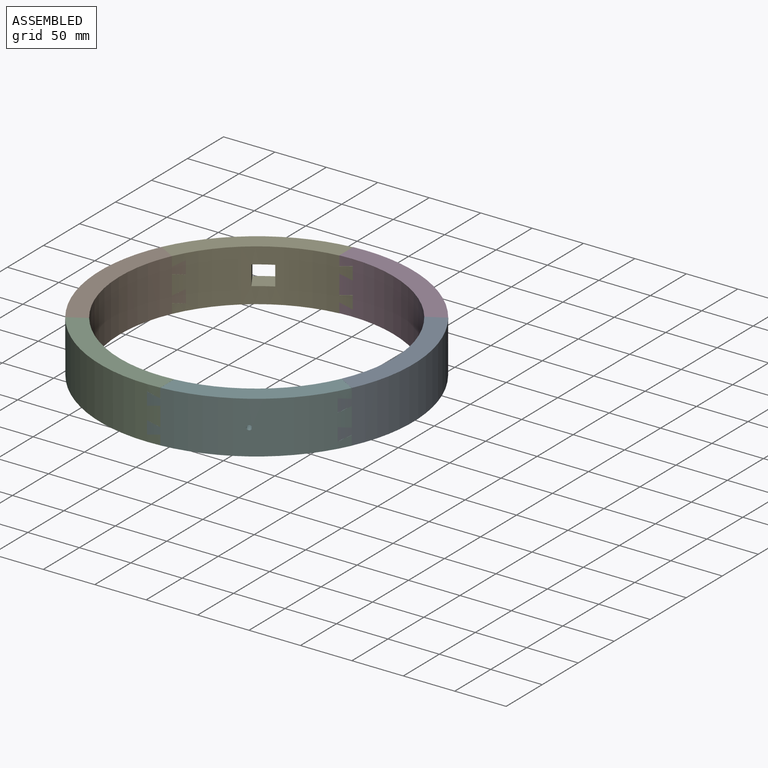
[diagram: assembled view]
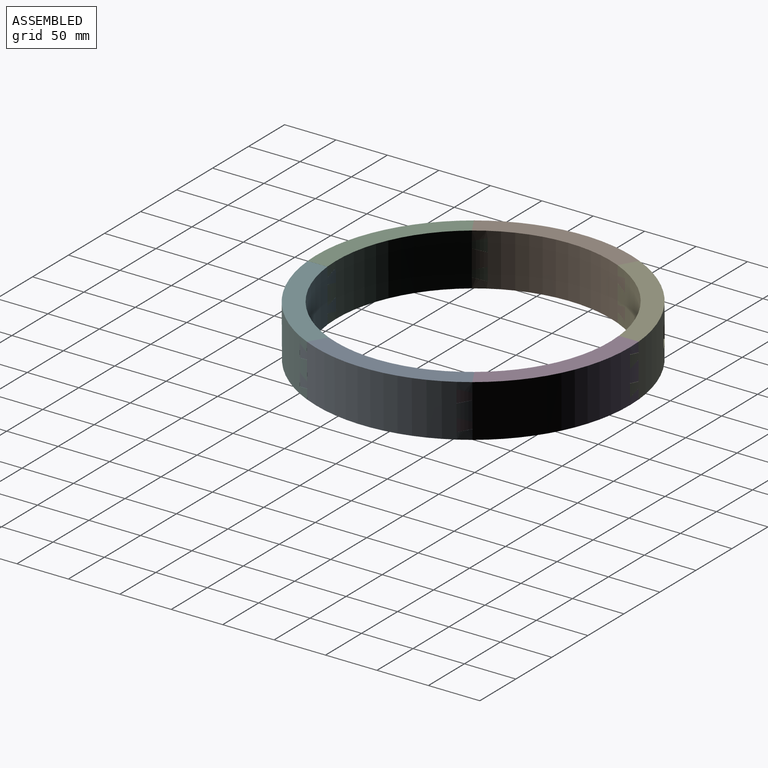
[diagram: assembled view, second angle]
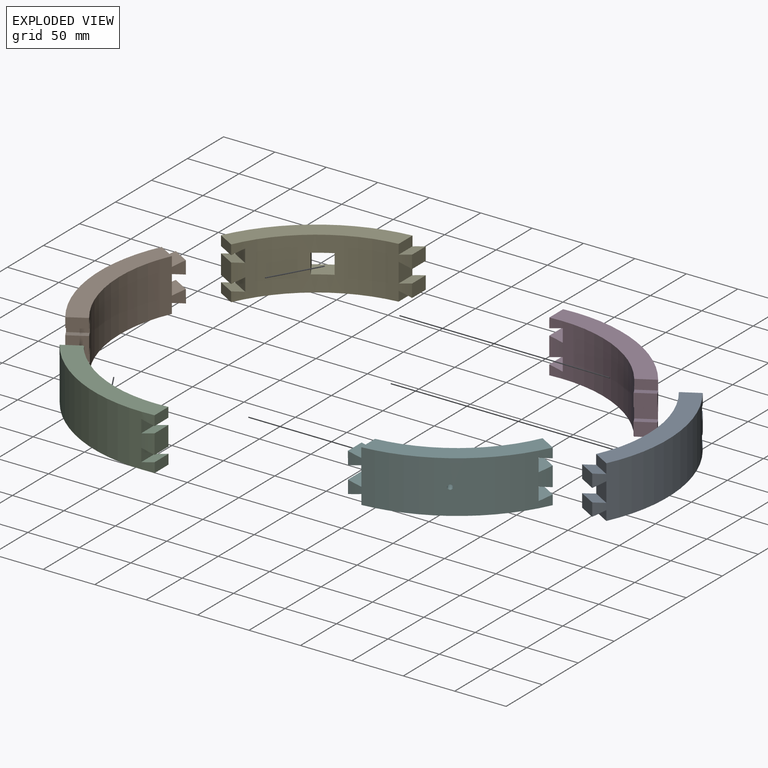
[diagram: exploded view]
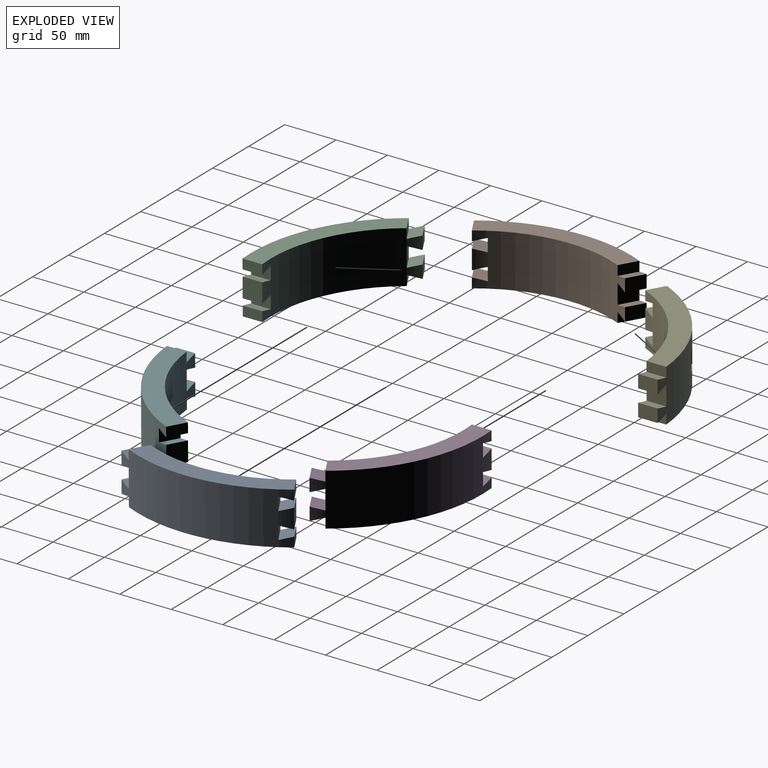
[diagram: exploded view, second angle]
ASSEMBLY  parts=6 mates=4
PART A: 23 faces, bbox 137.9x97x50.8 mm
  f0: cylinder r=133.35mm len=121.31mm, axis (0,0,-1), area 7095.6mm2, adj f1,f2,f4,f5,f6,f7,f8,f9
  f1: plane 19.05x12.69mm, normal (1,0,0), area 241.7mm2, adj f0,f3,f16,f20
  f2: plane 19.05x12.66mm, normal (1,0,0), area 241.1mm2, adj f0,f3,f18,f22
  f3: cylinder r=152.4mm len=137.87mm, axis (0,0,-1), area 8109mm2, adj f1,f2,f4,f5,f6,f7,f8,f9
  f4: plane 125.17x96.49mm, normal (0,0,-1), area 2850mm2, adj f0,f3,f6,f17
  f5: plane 18.98x16.56mm, normal (-0.5,-0.87,0), area 363.1mm2, adj f0,f3,f9,f13
  f6: plane 16.56x9.56mm, normal (-0.5,-0.87,0), area 182mm2, adj f0,f3,f4,f10
  f7: plane 16.56x9.56mm, normal (-0.5,-0.87,0), area 181.7mm2, adj f0,f3,f8,f14
  f8: plane 125.28x96.5mm, normal (0,0,1), area 2852.2mm2, adj f0,f3,f7,f19
  f9: plane 22.37x20.79mm, normal (0.12,0.21,-0.97), area 248.8mm2, adj f0,f3,f5,f11
  f10: plane 22.38x20.81mm, normal (0.12,0.21,0.97), area 249.1mm2, adj f0,f3,f6,f11
  f11: plane 16.51x12.7mm, normal (-0.5,-0.87,0), area 241.9mm2, adj f0,f3,f9,f10
  f12: plane 16.51x12.7mm, normal (-0.5,-0.87,0), area 241.9mm2, adj f0,f3,f13,f14
  f13: plane 22.36x20.76mm, normal (0.12,0.21,0.97), area 248.1mm2, adj f0,f3,f5,f12
  f14: plane 22.34x20.74mm, normal (0.12,0.21,-0.97), area 247.8mm2, adj f0,f3,f7,f12
  f15: plane 19.13x9.53mm, normal (1,0,0), area 182.2mm2, adj f0,f3,f16,f17
  f16: plane 19.66x12.68mm, normal (-0.24,0,-0.97), area 249.4mm2, adj f0,f1,f3,f15
  f17: plane 19.13x0.05mm, normal (1,0,0), area 1mm2, adj f0,f3,f4,f15
  f18: plane 19.65x12.61mm, normal (-0.24,0,0.97), area 247.7mm2, adj f0,f2,f3,f19
  f19: plane 19.13x9.47mm, normal (1,0,0), area 181.1mm2, adj f0,f3,f8,f18
  f20: plane 19.66x12.67mm, normal (-0.24,0,0.97), area 248.8mm2, adj f0,f1,f3,f21
  f21: plane 19.13x19.02mm, normal (1,0,0), area 363.7mm2, adj f0,f3,f20,f22
  f22: plane 19.65x12.63mm, normal (-0.24,0,-0.97), area 248.3mm2, adj f0,f2,f3,f21
PART B: same geometry as A
PART C: same geometry as A
PART D: same geometry as A
PART E: 27 faces, bbox 137.9x97x50.8 mm
  f0: cylinder r=152.4mm len=137.87mm, axis (0,0,-1), area 7745.8mm2, adj f2,f3,f4,f5,f6,f7,f8,f9
  f1: cylinder r=133.35mm len=121.31mm, axis (0,0,-1), area 6732.4mm2, adj f2,f3,f4,f5,f6,f7,f8,f9
  f2: plane 19.05x12.69mm, normal (1,0,0), area 241.7mm2, adj f0,f1,f16,f20
  f3: plane 19.05x12.66mm, normal (1,0,0), area 241.1mm2, adj f0,f1,f18,f22
  f4: plane 125.17x96.49mm, normal (0,0,-1), area 2850mm2, adj f0,f1,f6,f17
  f5: plane 18.98x16.56mm, normal (-0.5,-0.87,0), area 363.1mm2, adj f0,f1,f9,f13
  f6: plane 16.56x9.56mm, normal (-0.5,-0.87,0), area 182mm2, adj f0,f1,f4,f10
  f7: plane 16.56x9.56mm, normal (-0.5,-0.87,0), area 181.7mm2, adj f0,f1,f8,f14
  f8: plane 125.28x96.5mm, normal (0,0,1), area 2852.2mm2, adj f0,f1,f7,f19
  f9: plane 22.37x20.79mm, normal (0.12,0.21,-0.97), area 248.8mm2, adj f0,f1,f5,f11
  f10: plane 22.38x20.81mm, normal (0.12,0.21,0.97), area 249.1mm2, adj f0,f1,f6,f11
  f11: plane 16.51x12.7mm, normal (-0.5,-0.87,0), area 241.9mm2, adj f0,f1,f9,f10
  f12: plane 16.51x12.7mm, normal (-0.5,-0.87,0), area 241.9mm2, adj f0,f1,f13,f14
  f13: plane 22.36x20.76mm, normal (0.12,0.21,0.97), area 248.1mm2, adj f0,f1,f5,f12
  f14: plane 22.34x20.74mm, normal (0.12,0.21,-0.97), area 247.8mm2, adj f0,f1,f7,f12
  f15: plane 19.13x9.53mm, normal (1,0,0), area 182.2mm2, adj f0,f1,f16,f17
  f16: plane 19.66x12.68mm, normal (-0.24,0,-0.97), area 249.4mm2, adj f0,f1,f2,f15
  f17: plane 19.13x0.05mm, normal (1,0,0), area 1mm2, adj f0,f1,f4,f15
  f18: plane 19.65x12.61mm, normal (-0.24,0,0.97), area 247.7mm2, adj f0,f1,f3,f19
  f19: plane 19.13x9.47mm, normal (1,0,0), area 181.1mm2, adj f0,f1,f8,f18
  f20: plane 19.66x12.67mm, normal (-0.24,0,0.97), area 248.8mm2, adj f0,f1,f2,f21
  f21: plane 19.13x19.02mm, normal (1,0,0), area 363.7mm2, adj f0,f1,f20,f22
  f22: plane 19.65x12.63mm, normal (-0.24,0,-0.97), area 248.3mm2, adj f0,f1,f3,f21
  f23: plane 26.36x26.35mm, normal (0,0,-1), area 363.2mm2, adj f0,f1,f24,f26
  f24: plane 19.05x16.06mm, normal (0.84,0.54,0), area 363.7mm2, adj f0,f1,f23,f25
  f25: plane 26.36x26.35mm, normal (0,0,1), area 363.2mm2, adj f0,f1,f24,f26
  f26: plane 19.05x16.06mm, normal (-0.84,-0.54,0), area 363.7mm2, adj f0,f1,f23,f25
PART F: 24 faces, bbox 137.9x97x50.8 mm
  f0: cylinder r=133.35mm len=121.31mm, axis (0,0,-1), area 7077.8mm2, adj f2,f3,f4,f5,f6,f7,f8,f9
  f1: cylinder r=152.4mm len=137.87mm, axis (0,0,-1), area 8091.3mm2, adj f2,f3,f4,f5,f6,f7,f8,f9
  f2: plane 19.05x12.69mm, normal (1,0,0), area 241.7mm2, adj f0,f1,f16,f20
  f3: plane 19.05x12.66mm, normal (1,0,0), area 241.1mm2, adj f0,f1,f18,f22
  f4: plane 125.17x96.49mm, normal (0,0,-1), area 2850mm2, adj f0,f1,f6,f17
  f5: plane 18.98x16.56mm, normal (-0.5,-0.87,0), area 363.1mm2, adj f0,f1,f9,f13
  f6: plane 16.56x9.56mm, normal (-0.5,-0.87,0), area 182mm2, adj f0,f1,f4,f10
  f7: plane 16.56x9.56mm, normal (-0.5,-0.87,0), area 181.7mm2, adj f0,f1,f8,f14
  f8: plane 125.28x96.5mm, normal (0,0,1), area 2852.2mm2, adj f0,f1,f7,f19
  f9: plane 22.37x20.79mm, normal (0.12,0.21,-0.97), area 248.8mm2, adj f0,f1,f5,f11
  f10: plane 22.38x20.81mm, normal (0.12,0.21,0.97), area 249.1mm2, adj f0,f1,f6,f11
  f11: plane 16.51x12.7mm, normal (-0.5,-0.87,0), area 241.9mm2, adj f0,f1,f9,f10
  f12: plane 16.51x12.7mm, normal (-0.5,-0.87,0), area 241.9mm2, adj f0,f1,f13,f14
  f13: plane 22.36x20.76mm, normal (0.12,0.21,0.97), area 248.1mm2, adj f0,f1,f5,f12
  f14: plane 22.34x20.74mm, normal (0.12,0.21,-0.97), area 247.8mm2, adj f0,f1,f7,f12
  f15: plane 19.13x9.53mm, normal (1,0,0), area 182.2mm2, adj f0,f1,f16,f17
  f16: plane 19.66x12.68mm, normal (-0.24,0,-0.97), area 249.4mm2, adj f0,f1,f2,f15
  f17: plane 19.13x0.05mm, normal (1,0,0), area 1mm2, adj f0,f1,f4,f15
  f18: plane 19.65x12.61mm, normal (-0.24,0,0.97), area 247.7mm2, adj f0,f1,f3,f19
  f19: plane 19.13x9.47mm, normal (1,0,0), area 181.1mm2, adj f0,f1,f8,f18
  f20: plane 19.66x12.67mm, normal (-0.24,0,0.97), area 248.8mm2, adj f0,f1,f2,f21
  f21: plane 19.13x19.02mm, normal (1,0,0), area 363.7mm2, adj f0,f1,f20,f22
  f22: plane 19.65x12.63mm, normal (-0.24,0,-0.97), area 248.3mm2, adj f0,f1,f3,f21
  f23: cylinder r=2.38mm len=18.62mm, axis (-0.54,0.84,0), area 285mm2, adj f0,f1
PLACE A rot(axis=(0,0,-1),120deg) t=(137.86,-64.92,-50.86)mm
PLACE B rot(axis=(0,0,1),60deg) t=(137.88,-64.94,-50.94)mm
PLACE C rot(axis=(0,0,1),120deg) t=(137.89,-64.93,-50.91)mm
PLACE D rot(axis=(0,0,-1),60deg) t=(137.86,-64.94,-50.83)mm
PLACE E rot(axis=(0,0,-1),0deg) t=(137.87,-64.95,-50.97)mm
PLACE F rot(axis=(0,0,1),180deg) t=(137.87,-64.93,-50.94)mm
MATE fastened D.f19 <-> A.f7  axis (0.5,-0.87,0) through (246.65,12.34,-0.27)mm
MATE fastened C.f19 <-> B.f7  axis (-0.5,0.87,0) through (29.21,-142.4,-0.41)mm
MATE fastened F.f15 <-> C.f6  axis (-1,0,0) through (150.57,-197.67,-51.43)mm
MATE fastened E.f7 <-> B.f19  axis (-0.5,-0.87,0) through (16.56,-9.56,-0.17)mm
